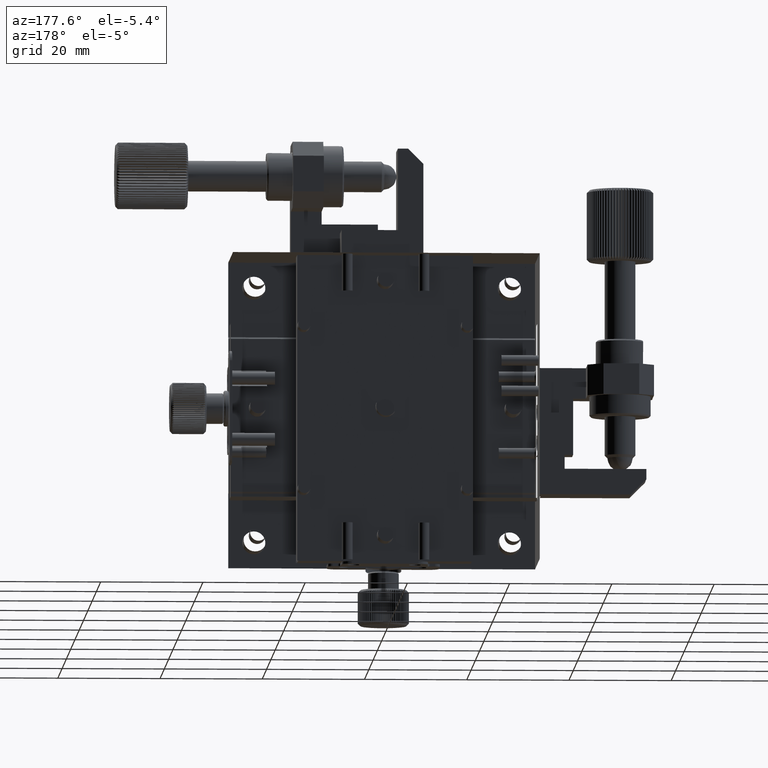
[diagram: clean part render]
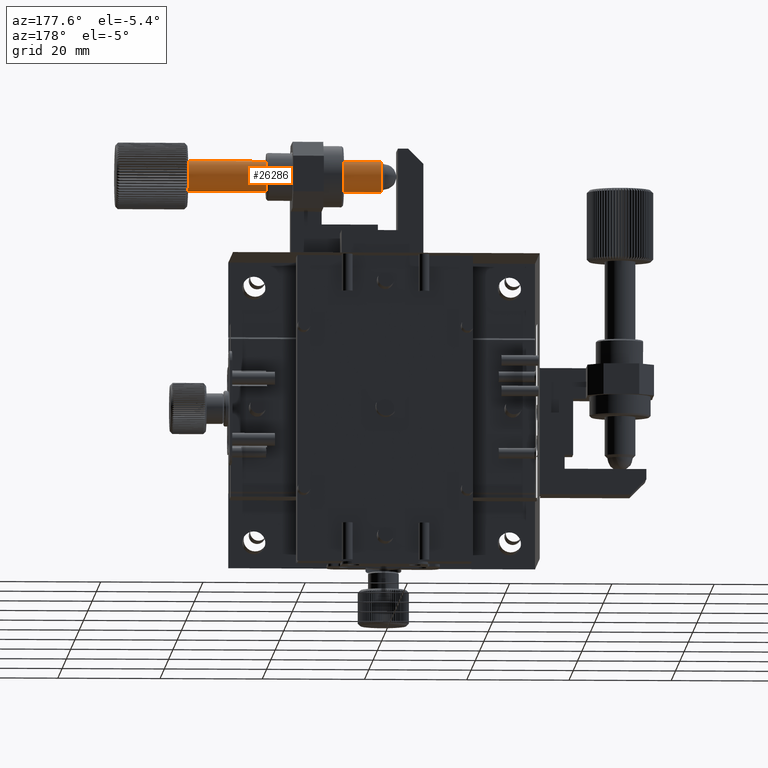
[diagram: same view with one face highlighted and labeled with its STEP entity id]
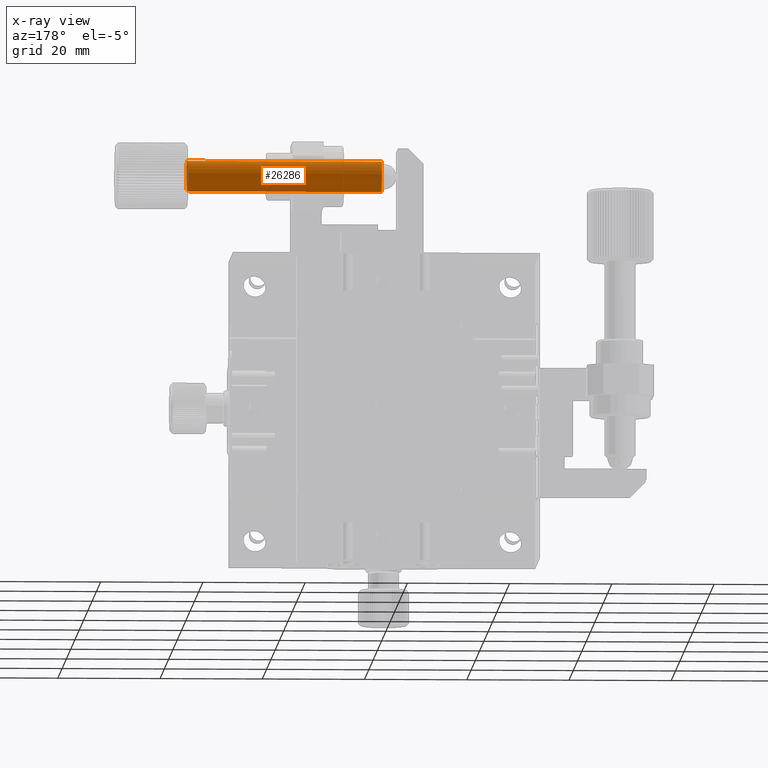
[diagram: x-ray of the same camera — body ghosted, the highlighted face saturated]
A machine part, auxiliary view. The second image highlights one B-rep face of the part: STEP entity #26286.
The next image is the same camera in x-ray: the body ghosted, the highlighted face saturated — about 0% of this face is hidden behind the body in this view.
In plain terms, the highlighted cylindrical surface (bore or boss wall) has radius 3 mm, axis along (-1, -0, -0).
Its self-contained STEP definition (entity closure, byte-faithful):
#4960 = ORIENTED_EDGE ( 'NONE', *, *, #31540, .T. ) ;
#4981 = DIRECTION ( 'NONE',  ( 0.000000000000000000, 0.000000000000000000, 1.000000000000000000 ) ) ;
#5042 = VERTEX_POINT ( 'NONE', #19124 ) ;
#6174 = CARTESIAN_POINT ( 'NONE',  ( 0.5000000000000038858, 10.00000000000000178, 49.00000000000000000 ) ) ;
#9313 = AXIS2_PLACEMENT_3D ( 'NONE', #43559, #14929, #4981 ) ;
#10157 = EDGE_LOOP ( 'NONE', ( #4960 ) ) ;
#10820 = FACE_OUTER_BOUND ( 'NONE', #38116, .T. ) ;
#11041 = CARTESIAN_POINT ( 'NONE',  ( -2.499999999999998668, 10.00000000000000178, 46.00000000000000000 ) ) ;
#14929 = DIRECTION ( 'NONE',  ( -1.000000000000000000, -0.000000000000000000, -0.000000000000000000 ) ) ;
#16833 = CARTESIAN_POINT ( 'NONE',  ( 0.5000000000000038858, 10.00000000000000178, 46.00000000000000000 ) ) ;
#19124 = CARTESIAN_POINT ( 'NONE',  ( 38.50000000000000711, 10.00000000000000178, 49.00000000000000000 ) ) ;
#20299 = DIRECTION ( 'NONE',  ( 0.000000000000000000, 0.000000000000000000, 1.000000000000000000 ) ) ;
#24901 = CYLINDRICAL_SURFACE ( 'NONE', #41874, 3.000000000000002665 ) ;
#26286 = ADVANCED_FACE ( 'NONE', ( #10820, #35321 ), #24901, .T. ) ;
#27233 = ORIENTED_EDGE ( 'NONE', *, *, #39358, .T. ) ;
#28003 = AXIS2_PLACEMENT_3D ( 'NONE', #16833, #31363, #20299 ) ;
#31121 = VERTEX_POINT ( 'NONE', #6174 ) ;
#31363 = DIRECTION ( 'NONE',  ( 1.000000000000000000, 0.000000000000000000, 0.000000000000000000 ) ) ;
#31540 = EDGE_CURVE ( 'NONE', #5042, #5042, #37464, .T. ) ;
#32294 = DIRECTION ( 'NONE',  ( 0.000000000000000000, 0.000000000000000000, 1.000000000000000000 ) ) ;
#33929 = CIRCLE ( 'NONE', #28003, 3.000000000000002665 ) ;
#35321 = FACE_OUTER_BOUND ( 'NONE', #10157, .T. ) ;
#37464 = CIRCLE ( 'NONE', #9313, 3.000000000000002665 ) ;
#38116 = EDGE_LOOP ( 'NONE', ( #27233 ) ) ;
#39358 = EDGE_CURVE ( 'NONE', #31121, #31121, #33929, .T. ) ;
#41874 = AXIS2_PLACEMENT_3D ( 'NONE', #11041, #45684, #32294 ) ;
#43559 = CARTESIAN_POINT ( 'NONE',  ( 38.50000000000000711, 10.00000000000000178, 46.00000000000000000 ) ) ;
#45684 = DIRECTION ( 'NONE',  ( -1.000000000000000000, -0.000000000000000000, -0.000000000000000000 ) ) ;